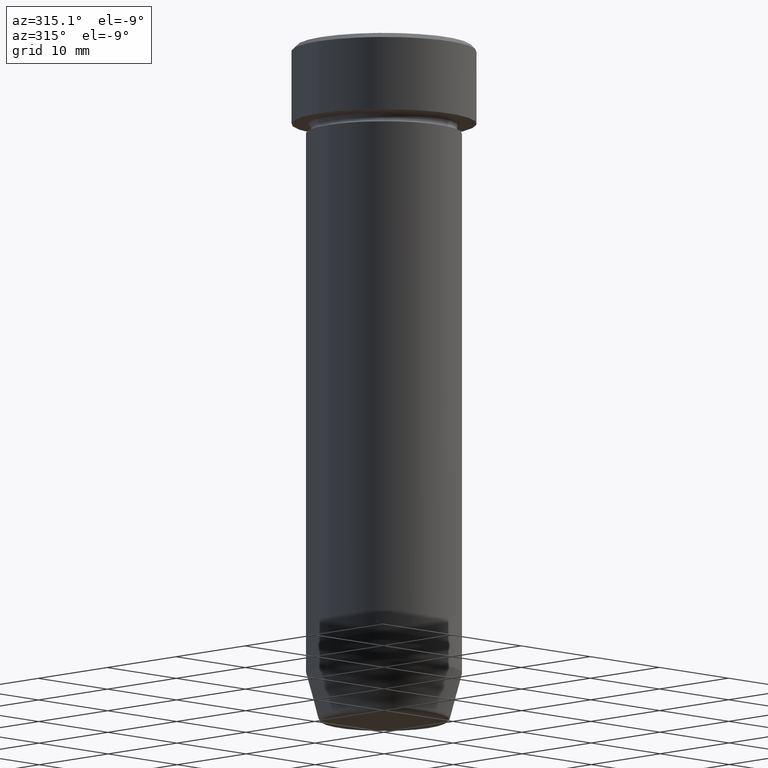
[diagram: clean part render]
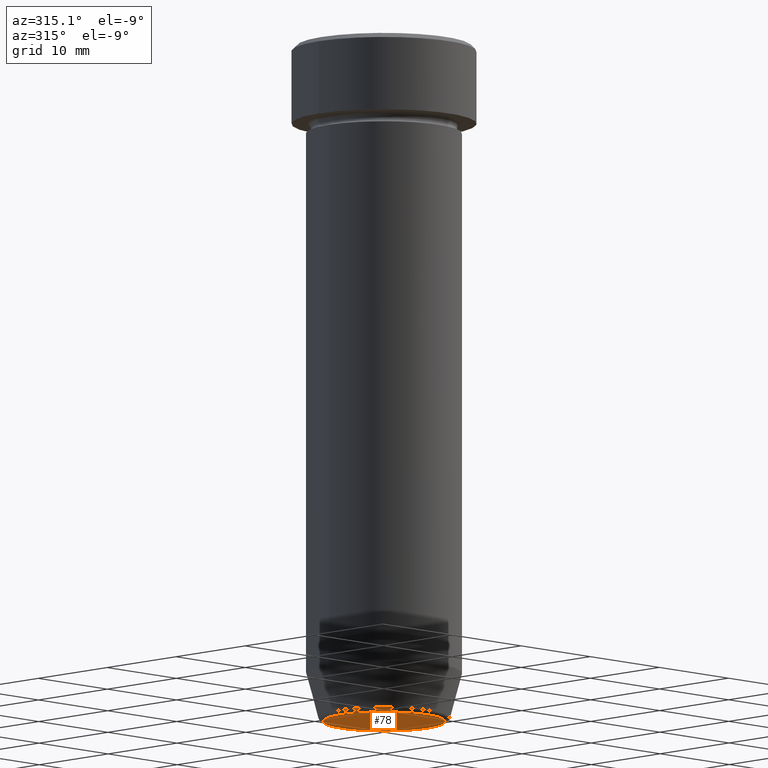
[diagram: same view with one face highlighted and labeled with its STEP entity id]
A machine part, auxiliary view. The second image highlights one B-rep face of the part: STEP entity #78.
In plain terms, the highlighted planar face has unit normal (0, -0, 1).
Its self-contained STEP definition (entity closure, byte-faithful):
#19 = CARTESIAN_POINT ( 'NONE',  ( 0.000000000000000000, 0.000000000000000000, -70.00000000000000000 ) ) ;
#32 = EDGE_CURVE ( 'NONE', #414, #43, #80, .T. ) ;
#43 = VERTEX_POINT ( 'NONE', #90 ) ;
#58 = ORIENTED_EDGE ( 'NONE', *, *, #371, .T. ) ;
#78 = ADVANCED_FACE ( 'NONE', ( #297 ), #288, .F. ) ;
#80 = CIRCLE ( 'NONE', #218, 6.276590543854900339 ) ;
#90 = CARTESIAN_POINT ( 'NONE',  ( -6.276590543854900339, 7.982336011935116411E-16, -70.00000000000000000 ) ) ;
#144 = DIRECTION ( 'NONE',  ( 1.000000000000000000, 0.000000000000000000, 0.000000000000000000 ) ) ;
#156 = EDGE_LOOP ( 'NONE', ( #470, #58 ) ) ;
#166 = CARTESIAN_POINT ( 'NONE',  ( 6.276590543854900339, 0.000000000000000000, -70.00000000000000000 ) ) ;
#209 = AXIS2_PLACEMENT_3D ( 'NONE', #253, #586, #436 ) ;
#215 = CIRCLE ( 'NONE', #592, 6.276590543854900339 ) ;
#218 = AXIS2_PLACEMENT_3D ( 'NONE', #386, #508, #144 ) ;
#253 = CARTESIAN_POINT ( 'NONE',  ( 0.000000000000000000, 2.449293598294708880E-15, -70.00000000000000000 ) ) ;
#288 = PLANE ( 'NONE',  #209 ) ;
#297 = FACE_OUTER_BOUND ( 'NONE', #156, .T. ) ;
#301 = DIRECTION ( 'NONE',  ( 1.000000000000000000, 0.000000000000000000, 0.000000000000000000 ) ) ;
#304 = DIRECTION ( 'NONE',  ( 0.000000000000000000, 0.000000000000000000, -1.000000000000000000 ) ) ;
#371 = EDGE_CURVE ( 'NONE', #43, #414, #215, .T. ) ;
#386 = CARTESIAN_POINT ( 'NONE',  ( 0.000000000000000000, 0.000000000000000000, -70.00000000000000000 ) ) ;
#414 = VERTEX_POINT ( 'NONE', #166 ) ;
#436 = DIRECTION ( 'NONE',  ( 1.000000000000000000, 0.000000000000000000, 0.000000000000000000 ) ) ;
#470 = ORIENTED_EDGE ( 'NONE', *, *, #32, .T. ) ;
#508 = DIRECTION ( 'NONE',  ( 0.000000000000000000, 0.000000000000000000, -1.000000000000000000 ) ) ;
#586 = DIRECTION ( 'NONE',  ( 0.000000000000000000, -0.000000000000000000, 1.000000000000000000 ) ) ;
#592 = AXIS2_PLACEMENT_3D ( 'NONE', #19, #304, #301 ) ;